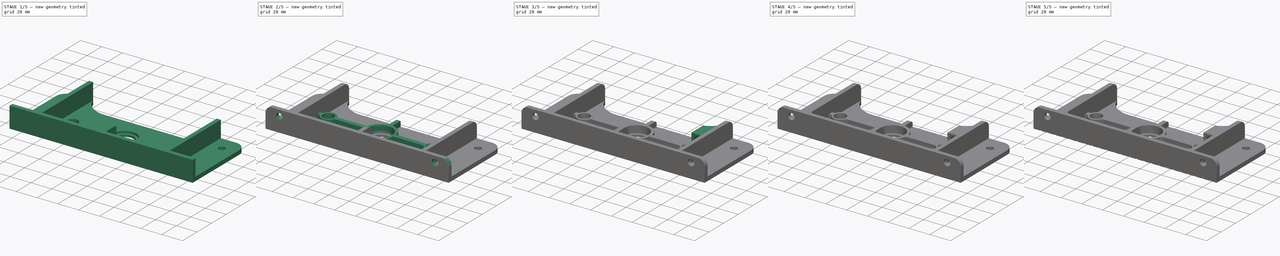
[diagram: build sequence overview — one tinted view per stage of 5, left to right]
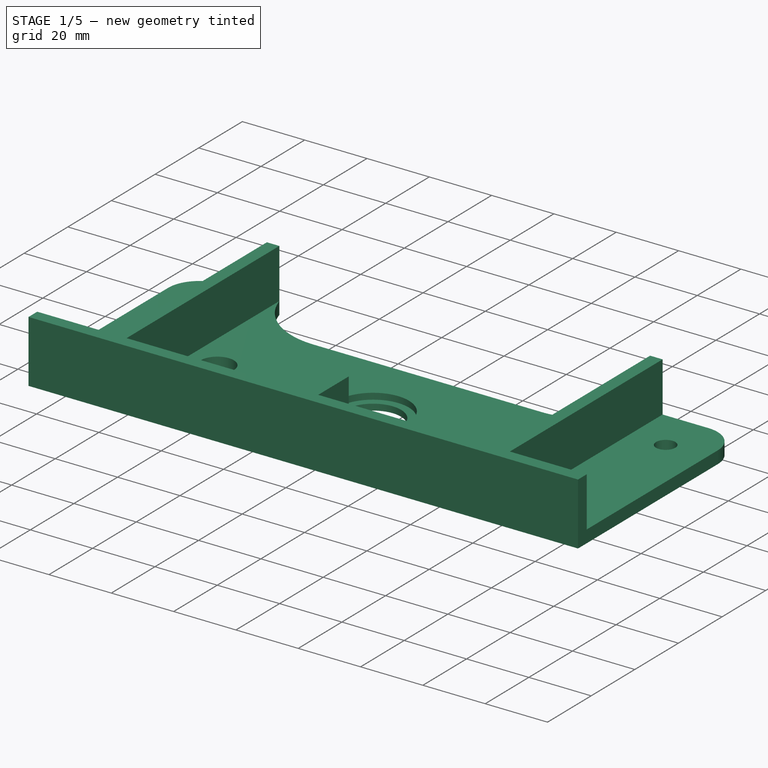
[diagram: stage 1 of 5 — iso view after this stage's code; geometry added in this stage tinted green]
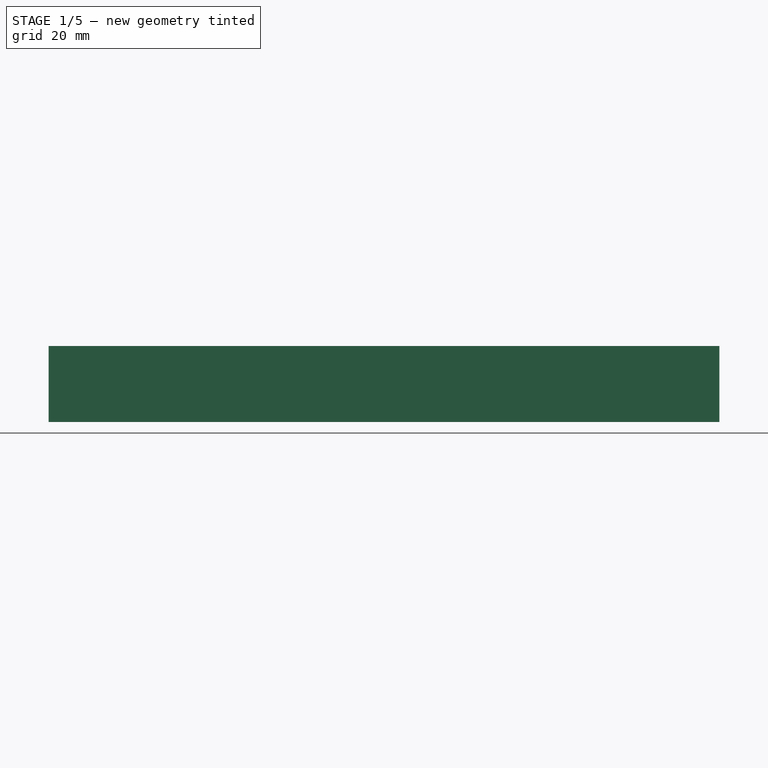
[diagram: stage 1 of 5 — front view after this stage's code; geometry added in this stage tinted green]
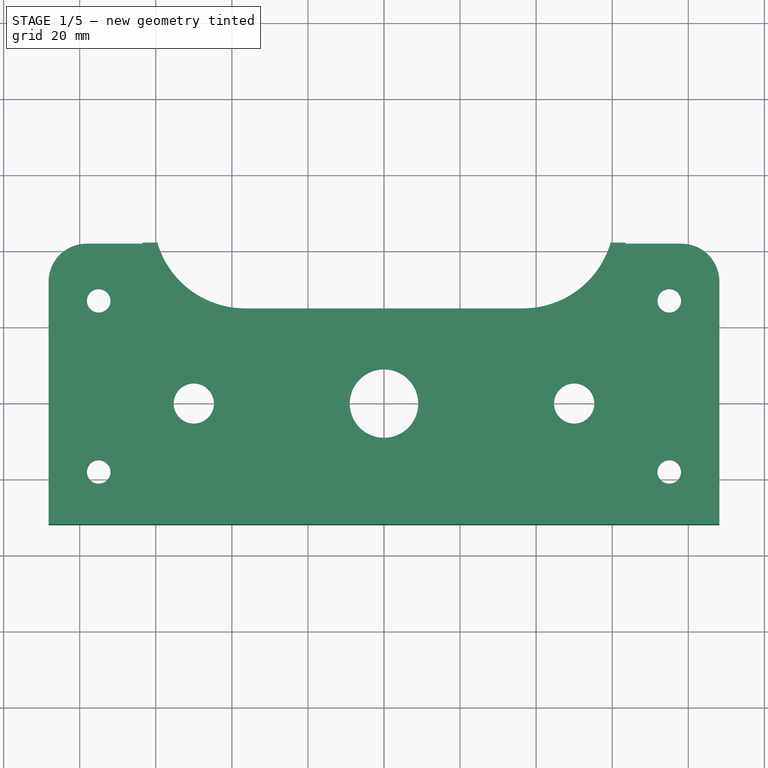
[diagram: stage 1 of 5 — top view after this stage's code; geometry added in this stage tinted green]
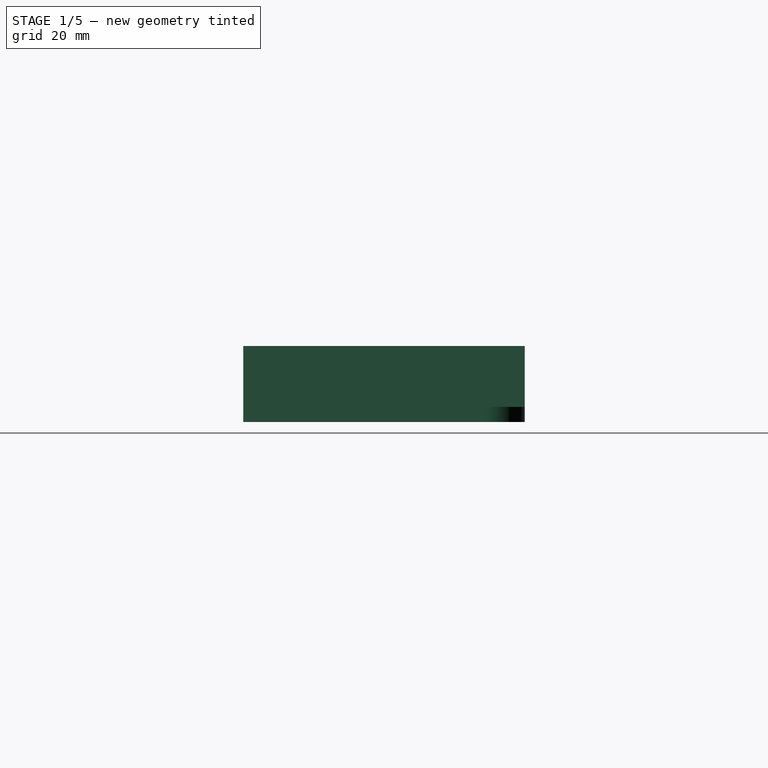
[diagram: stage 1 of 5 — right view after this stage's code; geometry added in this stage tinted green]
FCSTD DOCUMENT  (FreeCAD 0.17R8073 (Git))
Label: z_upper_v2.6
License: All rights reserved
LicenseURL: http://en.wikipedia.org/wiki/All_rights_reserved
objects: Sketcher::SketchObject×9, PartDesign::Pocket×5, PartDesign::Pad×4, PartDesign::Fillet×4, PartDesign::LinearPattern×2, PartDesign::Body×1
note: 34 computed .brp shape members not serialized (recipe doc carries the construction recipe); baked Part::Feature solids carry a one-line shape summary decoded from their .brp

FEATURE [Sketcher::SketchObject] Sketch
  MapMode = 5
  Support = -> [XY_Plane]
  sketch-geometry (17):
    g0: LineSegment StartX=-88.175 StartY=-32 StartZ=0 EndX=88.175 EndY=-32 EndZ=0
    g1: LineSegment StartX=88.175 StartY=-32 StartZ=0 EndX=88.175 EndY=32 EndZ=0
    g2: LineSegment StartX=-36.5435 StartY=25 StartZ=0 EndX=36.5435 EndY=25 EndZ=0
    g3: LineSegment StartX=-88.175 StartY=-32 StartZ=0 EndX=-88.175 EndY=32 EndZ=0
    g4: LineSegment StartX=-78.175 StartY=42 StartZ=0 EndX=-59.5 EndY=42 EndZ=0
    g5: LineSegment StartX=59.5 StartY=42 StartZ=0 EndX=78.175 EndY=42 EndZ=0
    g6: ArcOfCircle CenterX=-78.175 CenterY=32 CenterZ=0 NormalX=0 NormalY=0 NormalZ=1 Radius=10 StartAngle=1.57079 EndAngle=3.1416
    g7: ArcOfCircle CenterX=78.175 CenterY=32 CenterZ=0 NormalX=0 NormalY=0 NormalZ=1 Radius=10 StartAngle=6.28318 EndAngle=7.85398
    g8: ArcOfCircle CenterX=-36.5435 CenterY=49 CenterZ=0 NormalX=0 NormalY=0 NormalZ=1 Radius=24 StartAngle=3.43756 EndAngle=4.71239
    g9: ArcOfCircle CenterX=36.5435 CenterY=49 CenterZ=0 NormalX=0 NormalY=0 NormalZ=1 Radius=24 StartAngle=4.71239 EndAngle=5.98722
    g10: Circle CenterX=0 CenterY=0 CenterZ=0 NormalX=0 NormalY=0 NormalZ=1 Radius=9
    g11: Circle CenterX=50 CenterY=0 CenterZ=0 NormalX=0 NormalY=0 NormalZ=1 Radius=5.3
    g12: Circle CenterX=-50 CenterY=0 CenterZ=0 NormalX=0 NormalY=0 NormalZ=1 Radius=5.3
    g13: Circle CenterX=-75 CenterY=-18 CenterZ=0 NormalX=0 NormalY=0 NormalZ=1 Radius=3.1
    g14: Circle CenterX=-75 CenterY=27 CenterZ=0 NormalX=0 NormalY=0 NormalZ=1 Radius=3.1
    g15: Circle CenterX=75 CenterY=27 CenterZ=0 NormalX=0 NormalY=0 NormalZ=1 Radius=3.1
    g16: Circle CenterX=75 CenterY=-18 CenterZ=0 NormalX=0 NormalY=0 NormalZ=1 Radius=3.1
  constraints (50):
    c: Coincident(g1,g0)
    c: Vertical(g1)
    c: Coincident(g3,g0)
    c: Vertical(g3)
    c: Horizontal(g4)
    c: Horizontal(g5)
    c: Coincident(g6,g3)
    c: Coincident(g6,g4)
    c: Coincident(g7,g1)
    c: Coincident(g7,g5)
    c: Coincident(g8,g2)
    c: Coincident(g8,g4)
    c: Coincident(g9,g2)
    c: Coincident(g9,g5)
    c: PointOnObject(g10,g-2)
    c: Coincident(g10,g-1)
    c: Symmetric(g0,g0,g-2)
    c: Symmetric(g11,g12,g-2)
    c: Equal(g12,g11)
    c: Equal(g15,g16)
    c: Equal(g16,g13)
    c: Equal(g13,g14)
    c: Symmetric(g14,g15,g-2)
    c: Symmetric(g16,g13,g-2)
    c: DistanceX(g15,g16) = 0
    c: DistanceX(g-1,g0) = 88.175
    c: Equal(g3,g1)
    c: Equal(g5,g4)
    c: Symmetric(g2,g2,g-2)
    c: DistanceY(g0,g-1) = 32
    c: Radius(g10) = 9
    c: Radius(g11) = 5.3
    c: Radius(g15) = 3.1
    c: DistanceY(g0,g4) = 74
    c: Tangent(g8,g2)
    c: Tangent(g9,g2)
    c: Tangent(g6,g3)
    c: Tangent(g4,g6)
    c: Tangent(g7,g5)
    c: Tangent(g7,g1)
    c: DistanceY(g12,g-1) = 0
    c: DistanceX(g12,g-1) = 50
    c: DistanceX(g-1,g16) = 75
    c: DistanceY(g0,g13) = 14
    c: DistanceY(g14,g4) = 15
    c: Equal(g6,g7)
    c: Radius(g8) = 24
    c: DistanceX(g4,g-1) = 59.5
    c: DistanceY(g-1,g2) = 25
    c: Radius(g7) = 10
FEATURE [PartDesign::Pad] Pad
  Length = 4
  Length2 = 100
  Profile = -> Sketch
  Type = 0
FEATURE [Sketcher::SketchObject] Sketch001
  ExternalGeometry = -> [Pad]
  MapMode = 5
  Placement = pos=(0,0,4) rot=(0,0,1;0rad)
  Support = -> [Pad]
  sketch-geometry (16):
    g0: LineSegment StartX=-88.175 StartY=-32 StartZ=0 EndX=-88.175 EndY=-28 EndZ=0
    g1: LineSegment StartX=-88.175 StartY=-28 StartZ=0 EndX=-63.5 EndY=-28 EndZ=0
    g2: LineSegment StartX=-63.5 StartY=-28 StartZ=0 EndX=-63.5 EndY=42 EndZ=0
    g3: LineSegment StartX=-63.5 StartY=42 StartZ=0 EndX=-59.5 EndY=42 EndZ=0
    g4: LineSegment StartX=-59.5 StartY=42 StartZ=0 EndX=-59.5 EndY=-28 EndZ=0
    g5: LineSegment StartX=59.5 StartY=-28 StartZ=0 EndX=59.5 EndY=42 EndZ=0
    g6: LineSegment StartX=59.5 StartY=42 StartZ=0 EndX=63.5 EndY=42 EndZ=0
    g7: LineSegment StartX=63.5 StartY=42 StartZ=0 EndX=63.5 EndY=-28 EndZ=0
    g8: LineSegment StartX=63.5 StartY=-28 StartZ=0 EndX=88.175 EndY=-28 EndZ=0
    g9: LineSegment StartX=88.175 StartY=-28 StartZ=0 EndX=88.175 EndY=-32 EndZ=0
    g10: LineSegment StartX=88.175 StartY=-32 StartZ=0 EndX=-88.175 EndY=-32 EndZ=0
    g11: LineSegment StartX=-59.5 StartY=-28 StartZ=0 EndX=-2 EndY=-28 EndZ=0
    g12: LineSegment StartX=-2 StartY=-28 StartZ=0 EndX=-2 EndY=-14 EndZ=0
    g13: LineSegment StartX=-2 StartY=-14 StartZ=0 EndX=2 EndY=-14 EndZ=0
    g14: LineSegment StartX=2 StartY=-14 StartZ=0 EndX=2 EndY=-28 EndZ=0
    g15: LineSegment StartX=2 StartY=-28 StartZ=0 EndX=59.5 EndY=-28 EndZ=0
  constraints (44):
    c: Coincident(g0,g-3)
    c: Vertical(g0)
    c: Coincident(g0,g1)
    c: Horizontal(g1)
    c: Coincident(g1,g2)
    c: Vertical(g2)
    c: Coincident(g2,g3)
    c: Coincident(g3,g-6)
    c: Horizontal(g3)
    c: Coincident(g3,g4)
    c: Vertical(g4)
    c: Coincident(g5,g-5)
    c: Vertical(g5)
    c: Coincident(g5,g6)
    c: Horizontal(g6)
    c: Coincident(g6,g7)
    c: Vertical(g7)
    c: Coincident(g7,g8)
    c: Horizontal(g8)
    c: Coincident(g8,g9)
    c: Coincident(g9,g-4)
    c: Vertical(g9)
    c: Coincident(g9,g10)
    c: Coincident(g10,g0)
    c: Coincident(g4,g11)
    c: Horizontal(g11)
    c: Coincident(g11,g12)
    c: Vertical(g12)
    c: Coincident(g12,g13)
    c: Horizontal(g13)
    c: Coincident(g13,g14)
    c: Vertical(g14)
    c: Coincident(g14,g15)
    c: Coincident(g15,g5)
    c: Horizontal(g15)
    c: Symmetric(g14,g11,g-2)
    c: Equal(g12,g14)
    c: Equal(g3,g6)
    c: DistanceY(g1,g4) = 0
    c: DistanceY(g7,g5) = 0
    c: DistanceX(g13,g13) = 4
    c: DistanceY(g9,g9) = 4
    c: DistanceY(g14,g14) = 14
    c: DistanceX(g-1,g6) = 63.5
FEATURE [PartDesign::Pad] Pad001
  BaseFeature = -> Pad
  Length = 16
  Length2 = 100
  Profile = -> Sketch001
  Type = 0
FEATURE [Sketcher::SketchObject] Sketch002
  MapMode = 5
  Placement = pos=(0,0,4) rot=(0,0,1;0rad)
  Support = -> [Pad001]
  sketch-geometry (1):
    g0: Circle CenterX=0 CenterY=0 CenterZ=0 NormalX=0 NormalY=0 NormalZ=1 Radius=11.5
  constraints (2):
    c: Coincident(g0,g-1)
    c: Radius(g0) = 11.5
FEATURE [PartDesign::Pocket] Pocket
  BaseFeature = -> Pad001
  Length = 2
  Profile = -> Sketch002
  Type = 0
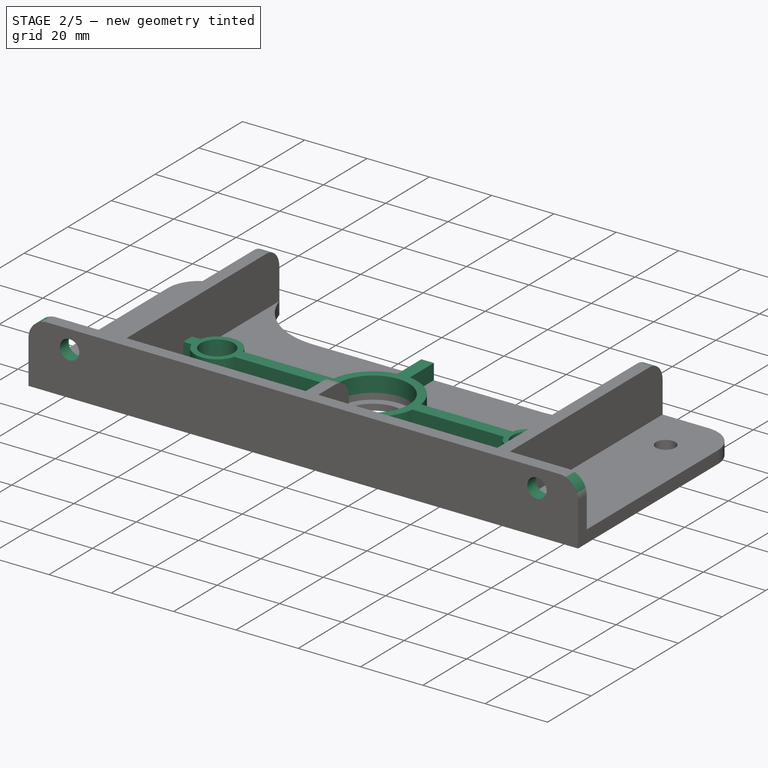
[diagram: stage 2 of 5 — iso view after this stage's code; geometry added in this stage tinted green]
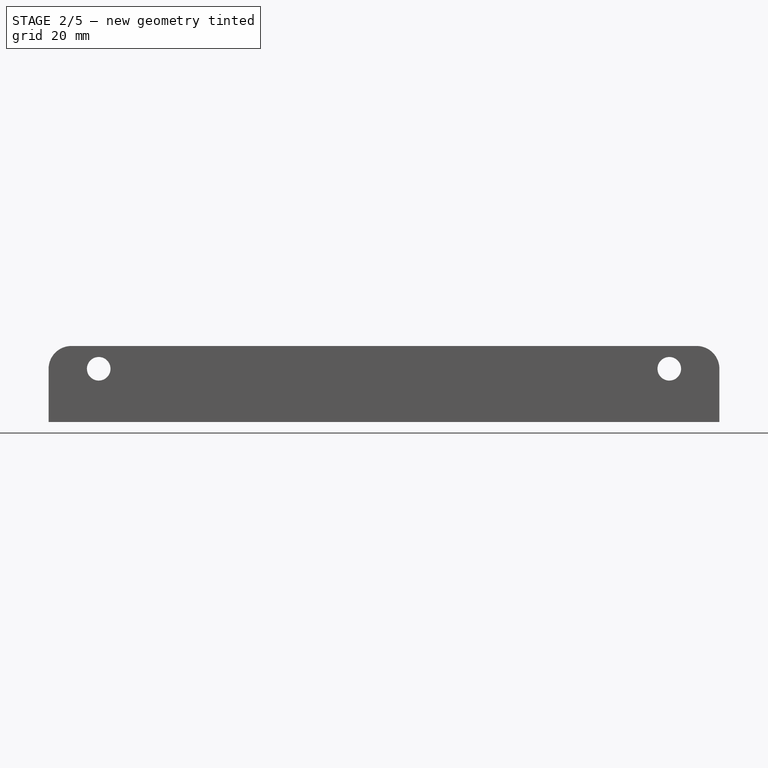
[diagram: stage 2 of 5 — front view after this stage's code; geometry added in this stage tinted green]
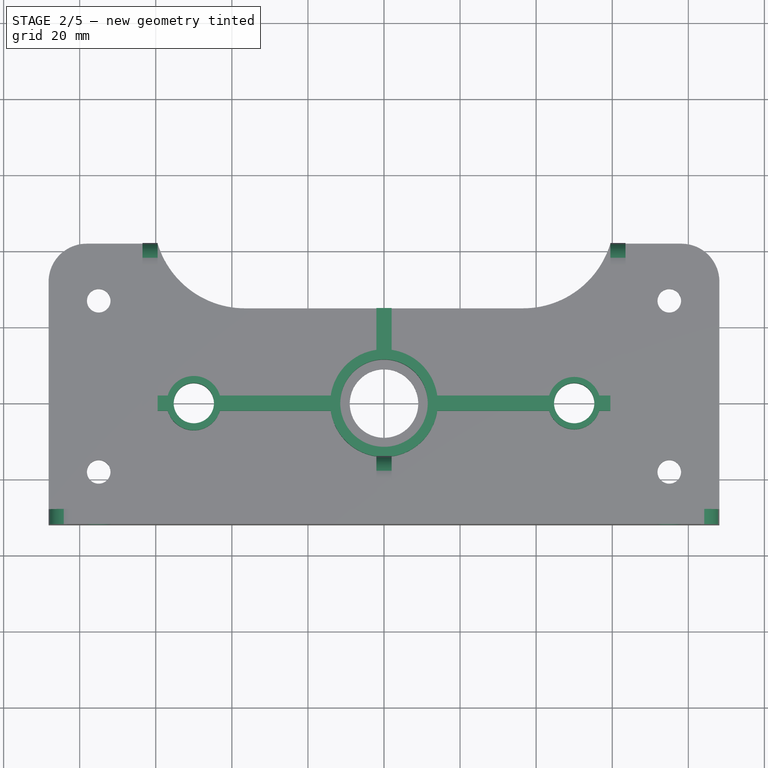
[diagram: stage 2 of 5 — top view after this stage's code; geometry added in this stage tinted green]
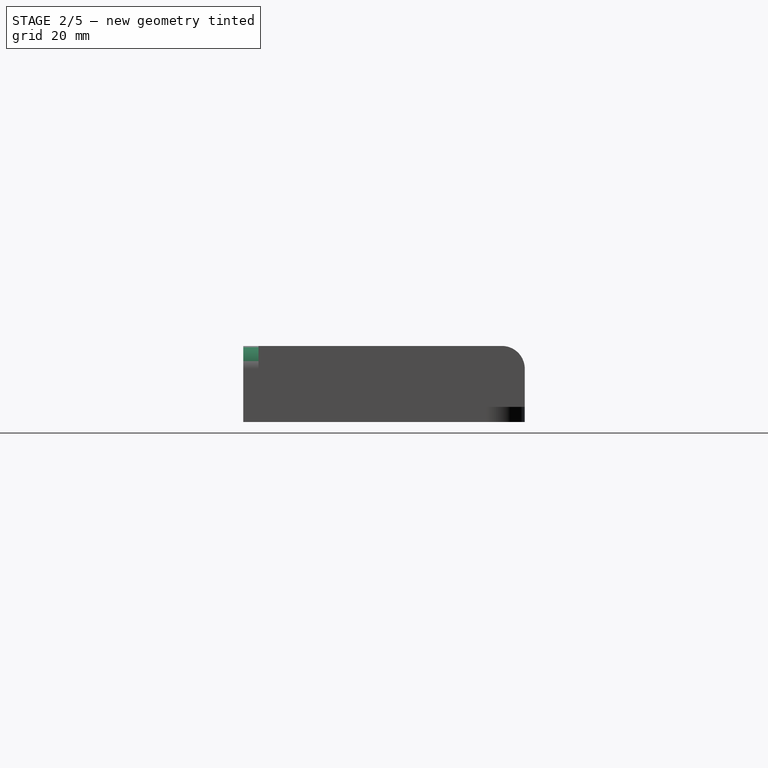
[diagram: stage 2 of 5 — right view after this stage's code; geometry added in this stage tinted green]
FEATURE [PartDesign::Fillet] Fillet
  Base = -> Pocket [Edge85,Edge82,Edge34,Edge39,Edge78]
  BaseFeature = -> Pocket
  Radius = 6
FEATURE [Sketcher::SketchObject] Sketch003
  ExternalGeometry = -> [Fillet]
  MapMode = 5
  Placement = pos=(0,-32,0) rot=(1,0,0;1.5708rad)
  Support = -> [Fillet]
  sketch-geometry (2):
    g0: Circle CenterX=-75 CenterY=14 CenterZ=0 NormalX=0 NormalY=0 NormalZ=1 Radius=3.1
    g1: Circle CenterX=75 CenterY=14 CenterZ=0 NormalX=0 NormalY=0 NormalZ=1 Radius=3.1
  constraints (5):
    c: Equal(g1,g0)
    c: Symmetric(g0,g1,g-2)
    c: DistanceX(g-1,g1) = 75
    c: Radius(g1) = 3.1
    c: DistanceY(g1,g-3) = 6
FEATURE [PartDesign::Pocket] Pocket001
  BaseFeature = -> Fillet
  Length = 5
  Profile = -> Sketch003
  Type = 0
FEATURE [Sketcher::SketchObject] Sketch004
  ExternalGeometry = -> [Pocket001]
  MapMode = 5
  Placement = pos=(0,0,4) rot=(0,0,1;0rad)
  Support = -> [Pocket001]
  sketch-geometry (25):
    g0: LineSegment StartX=-59.5 StartY=2 StartZ=0 EndX=-56.8461 EndY=2 EndZ=0
    g1: LineSegment StartX=-59.5 StartY=-2 StartZ=0 EndX=-56.8461 EndY=-2 EndZ=0
    g2: LineSegment StartX=-43.1539 StartY=2 StartZ=0 EndX=-14 EndY=2 EndZ=0
    g3: LineSegment StartX=-43.1539 StartY=-2 StartZ=0 EndX=-14 EndY=-2 EndZ=0
    g4: LineSegment StartX=59.5 StartY=2 StartZ=0 EndX=56.5822 EndY=2 EndZ=0
    g5: LineSegment StartX=59.5 StartY=-2 StartZ=0 EndX=56.5822 EndY=-2 EndZ=0
    g6: LineSegment StartX=43.4178 StartY=-2 StartZ=0 EndX=14 EndY=-2 EndZ=0
    g7: LineSegment StartX=43.4178 StartY=2 StartZ=0 EndX=14 EndY=2 EndZ=0
    g8: LineSegment StartX=-2 StartY=14 StartZ=0 EndX=-2 EndY=25 EndZ=0
    g9: LineSegment StartX=2 StartY=14 StartZ=0 EndX=2 EndY=25 EndZ=0
    g10: ArcOfCircle CenterX=0 CenterY=0 CenterZ=0 NormalX=0 NormalY=0 NormalZ=1 Radius=14.1421 StartAngle=1.71269 EndAngle=2.9997
    g11: ArcOfCircle CenterX=0 CenterY=0 CenterZ=0 NormalX=0 NormalY=0 NormalZ=1 Radius=14.1421 StartAngle=3.28349 EndAngle=4.57049
    g12: LineSegment StartX=-2 StartY=-14 StartZ=0 EndX=2 EndY=-14 EndZ=0
    g13: ArcOfCircle CenterX=0 CenterY=0 CenterZ=0 NormalX=0 NormalY=0 NormalZ=1 Radius=14.1421 StartAngle=4.85429 EndAngle=6.14129
    g14: ArcOfCircle CenterX=0 CenterY=0 CenterZ=0 NormalX=0 NormalY=0 NormalZ=1 Radius=14.1421 StartAngle=0.141897 EndAngle=1.4289
    g15: ArcOfCircle CenterX=-50 CenterY=0 CenterZ=0 NormalX=0 NormalY=0 NormalZ=1 Radius=7.13222 StartAngle=0.284229 EndAngle=2.85736
    g16: ArcOfCircle CenterX=-50 CenterY=0 CenterZ=0 NormalX=0 NormalY=0 NormalZ=1 Radius=7.13222 StartAngle=3.42582 EndAngle=5.99896
    g17: ArcOfCircle CenterX=50 CenterY=0 CenterZ=0 NormalX=0 NormalY=0 NormalZ=1 Radius=6.87932 StartAngle=0.294986 EndAngle=2.84661
    g18: ArcOfCircle CenterX=50 CenterY=0 CenterZ=0 NormalX=0 NormalY=0 NormalZ=1 Radius=6.87932 StartAngle=3.43658 EndAngle=5.9882
    g19: Circle CenterX=0 CenterY=0 CenterZ=0 NormalX=0 NormalY=0 NormalZ=1 Radius=11.5
    g20: Circle CenterX=50 CenterY=0 CenterZ=0 NormalX=0 NormalY=0 NormalZ=1 Radius=5.3
    g21: Circle CenterX=-50 CenterY=0 CenterZ=0 NormalX=0 NormalY=0 NormalZ=1 Radius=5.3
    g22: LineSegment StartX=59.5 StartY=-2 StartZ=0 EndX=59.5 EndY=2 EndZ=0
    g23: LineSegment StartX=-2 StartY=25 StartZ=0 EndX=2 EndY=25 EndZ=0
    g24: LineSegment StartX=-59.5 StartY=-2 StartZ=0 EndX=-59.5 EndY=2 EndZ=0
  constraints (65):
    c: PointOnObject(g0,g-5)
    c: Horizontal(g0)
    c: PointOnObject(g1,g-5)
    c: Horizontal(g1)
    c: Horizontal(g2)
    c: Horizontal(g3)
    c: PointOnObject(g4,g-4)
    c: Horizontal(g4)
    c: PointOnObject(g5,g-4)
    c: Horizontal(g6)
    c: Horizontal(g7)
    c: Horizontal(g5)
    c: Vertical(g8)
    c: Vertical(g9)
    c: Coincident(g10,g-1)
    c: Coincident(g10,g2)
    c: Coincident(g10,g8)
    c: Coincident(g11,g-1)
    c: Coincident(g11,g3)
    c: Coincident(g11,g-3)
    c: Coincident(g12,g11)
    c: Coincident(g12,g-3)
    c: Coincident(g13,g-1)
    c: Coincident(g13,g12)
    c: Coincident(g13,g6)
    c: Coincident(g14,g-1)
    c: Coincident(g14,g9)
    c: Coincident(g14,g7)
    c: PointOnObject(g15,g-1)
    c: Coincident(g15,g0)
    c: Coincident(g15,g2)
    c: Coincident(g16,g15)
    c: Coincident(g16,g1)
    c: Coincident(g16,g3)
    c: Coincident(g17,g7)
    c: Coincident(g17,g4)
    c: Coincident(g18,g17)
    c: Coincident(g18,g6)
    c: Coincident(g18,g5)
    c: Symmetric(g8,g9,g-2)
    c: Symmetric(g3,g2,g-1)
    c: Symmetric(g7,g6,g-1)
    c: Symmetric(g7,g6,g-1)
    c: Symmetric(g4,g5,g-1)
    c: Symmetric(g2,g3,g-1)
    c: Symmetric(g0,g1,g-1)
    c: DistanceY(g1,g0) = 4
    c: DistanceY(g3,g2) = 4
    c: DistanceX(g8,g9) = 4
    c: DistanceY(g6,g7) = 4
    c: DistanceY(g5,g4) = 4
    c: Coincident(g19,g-1)
    c: Radius(g19) = 11.5
    c: Coincident(g20,g17)
    c: Radius(g20) = 5.3
    c: Coincident(g21,g15)
    c: Equal(g21,g20)
    c: PointOnObject(g8,g-7)
    c: PointOnObject(g9,g-7)
    c: Coincident(g22,g5)
    c: Coincident(g22,g4)
    c: Coincident(g23,g8)
    c: Coincident(g23,g9)
    c: Coincident(g24,g1)
    c: Coincident(g24,g0)
FEATURE [PartDesign::Pad] Pad002
  BaseFeature = -> Pocket001
  Length = 5
  Length2 = 100
  Profile = -> Sketch004
  Type = 0
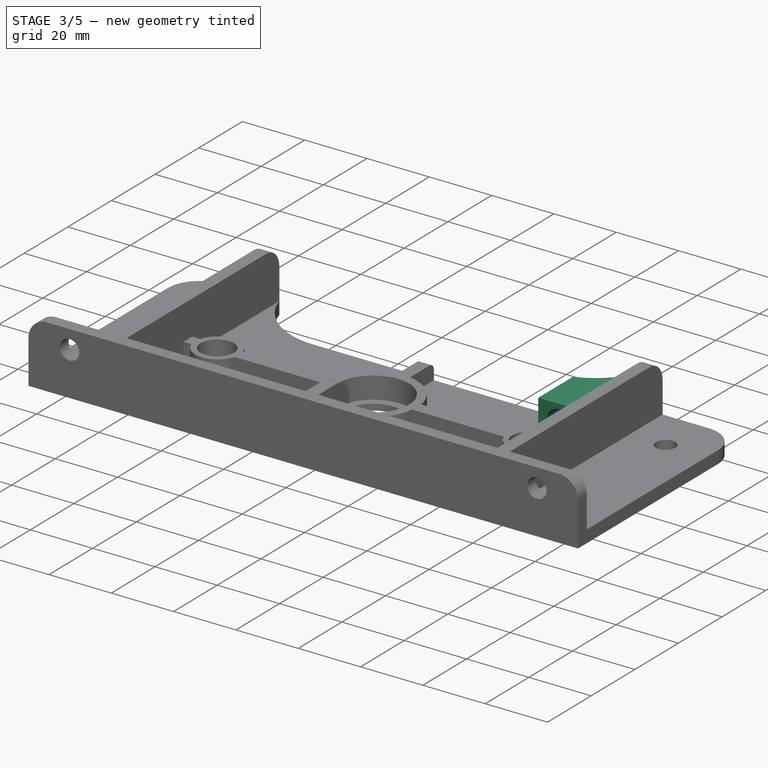
[diagram: stage 3 of 5 — iso view after this stage's code; geometry added in this stage tinted green]
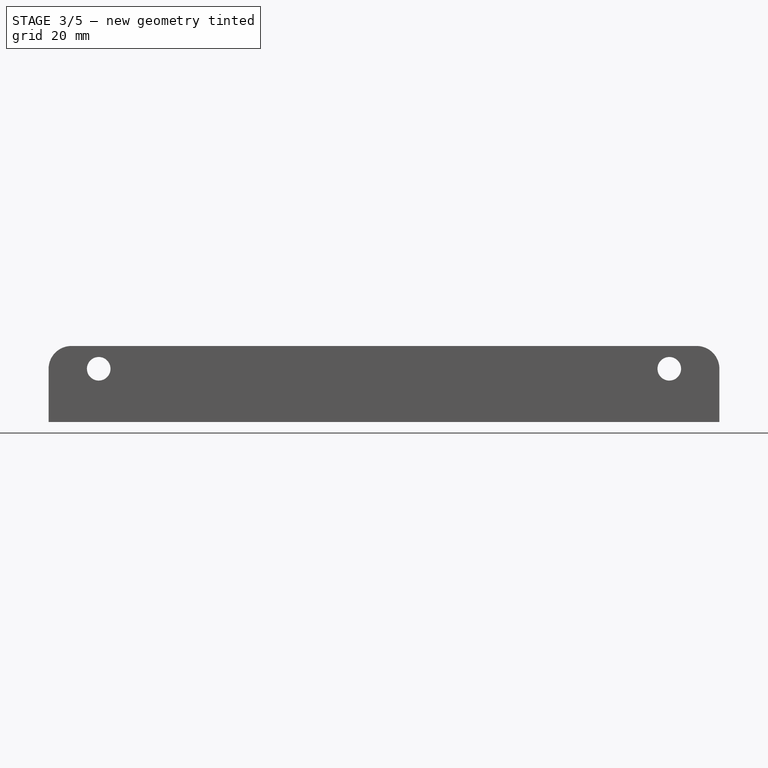
[diagram: stage 3 of 5 — front view after this stage's code; geometry added in this stage tinted green]
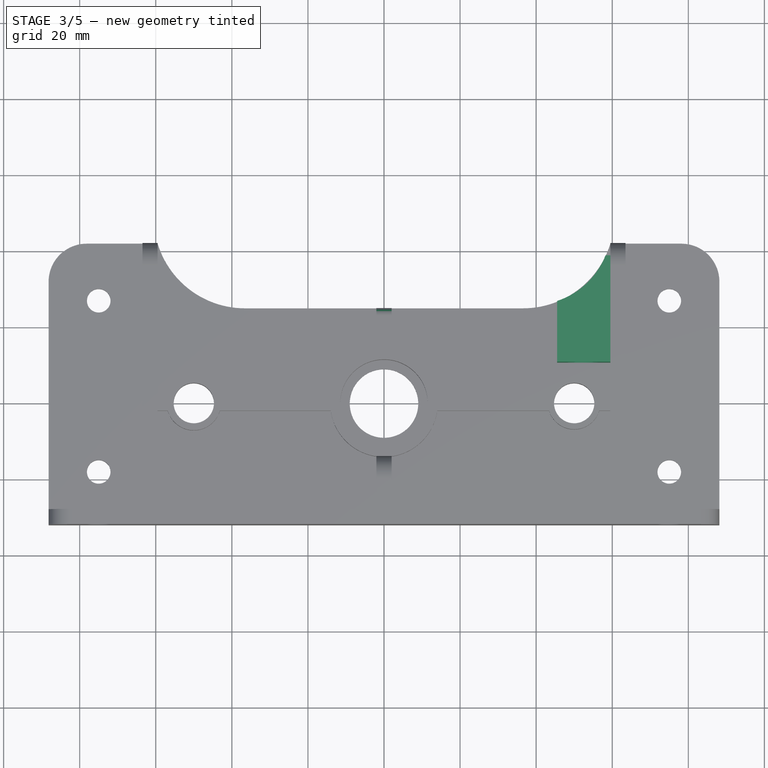
[diagram: stage 3 of 5 — top view after this stage's code; geometry added in this stage tinted green]
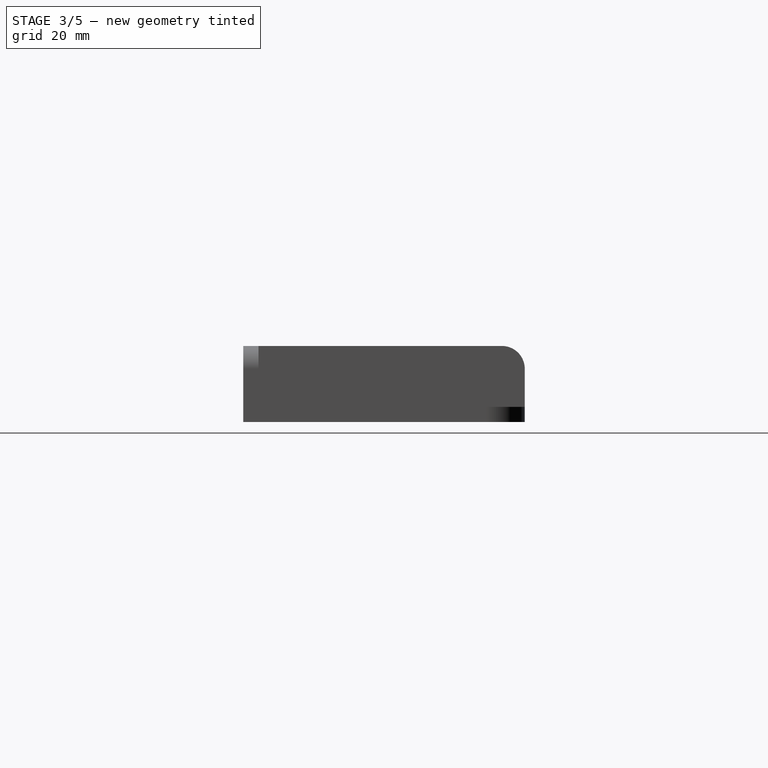
[diagram: stage 3 of 5 — right view after this stage's code; geometry added in this stage tinted green]
FEATURE [PartDesign::Fillet] Fillet001
  Base = -> Pad002 [Edge80]
  BaseFeature = -> Pad002
  Radius = 2
FEATURE [Sketcher::SketchObject] Sketch005
  ExternalGeometry = -> [Fillet001]
  MapMode = 5
  Placement = pos=(0,0,4) rot=(0,0,1;0rad)
  Support = -> [Fillet001]
  sketch-geometry (5):
    g0: LineSegment StartX=59.5 StartY=38.7338 StartZ=0 EndX=59.5 EndY=10.7338 EndZ=0
    g1: LineSegment StartX=59.5 StartY=10.7338 StartZ=0 EndX=45.5 EndY=10.7338 EndZ=0
    g2: LineSegment StartX=45.5 StartY=10.7338 StartZ=0 EndX=45.5 EndY=26.7338 EndZ=0
    g3: ArcOfCircle CenterX=39.1002 CenterY=46.2863 CenterZ=0 NormalX=0 NormalY=0 NormalZ=1 Radius=20.5732 StartAngle=5.02871 EndAngle=5.90729
    g4: LineSegment StartX=58.237 StartY=38.7338 StartZ=0 EndX=59.5 EndY=38.7338 EndZ=0
  constraints (16):
    c: PointOnObject(g0,g-3)
    c: PointOnObject(g0,g-3)
    c: Coincident(g0,g1)
    c: Horizontal(g1)
    c: Coincident(g2,g1)
    c: Vertical(g2)
    c: Coincident(g3,g2)
    c: Coincident(g4,g3)
    c: PointOnObject(g4,g-3)
    c: Horizontal(g4)
    c: PointOnObject(g2,g-4)
    c: PointOnObject(g3,g-4)
    c: DistanceX(g1,g1) = 14
    c: DistanceY(g0,g4) = 28
    c: DistanceY(g2,g2) = 16
    c: Coincident(g4,g0)
FEATURE [PartDesign::Pad] Pad003
  BaseFeature = -> Fillet001
  Length = 12
  Length2 = 100
  Profile = -> Sketch005
  Type = 0
FEATURE [Sketcher::SketchObject] Sketch006
  ExternalGeometry = -> [Pad003]
  MapMode = 5
  Placement = pos=(0,10.7338,0) rot=(1,0,0;1.5708rad)
  Support = -> [Pad003]
  sketch-geometry (1):
    g0: Circle CenterX=52.5 CenterY=10 CenterZ=0 NormalX=0 NormalY=0 NormalZ=1 Radius=4.5
  constraints (3):
    c: Radius(g0) = 4.5
    c: DistanceX(g-3,g0) = 7
    c: DistanceY(g0,g-3) = 6
FEATURE [PartDesign::Pocket] Pocket002
  BaseFeature = -> Pad003
  Length = 5
  Profile = -> Sketch006
  Type = 1
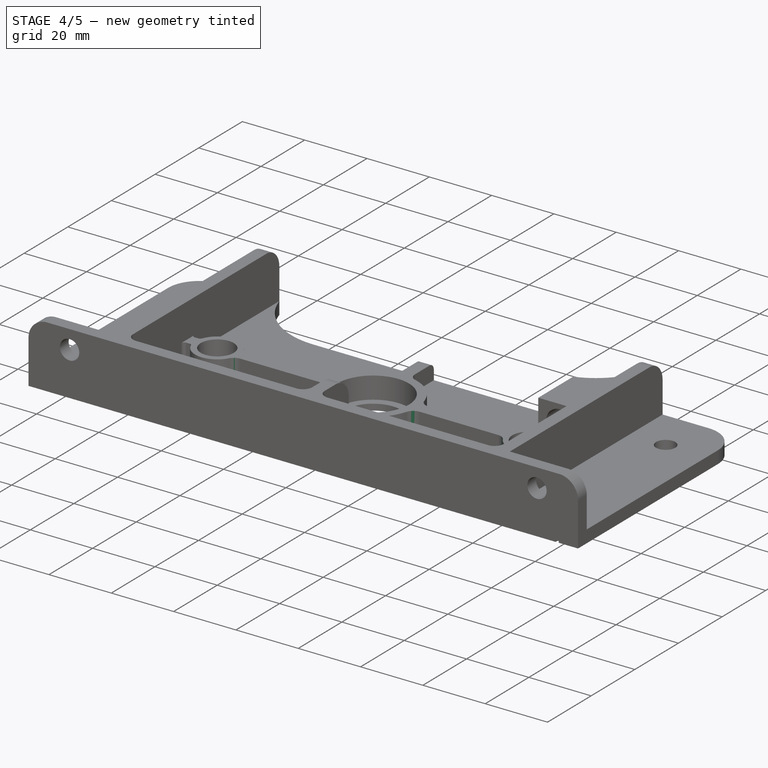
[diagram: stage 4 of 5 — iso view after this stage's code; geometry added in this stage tinted green]
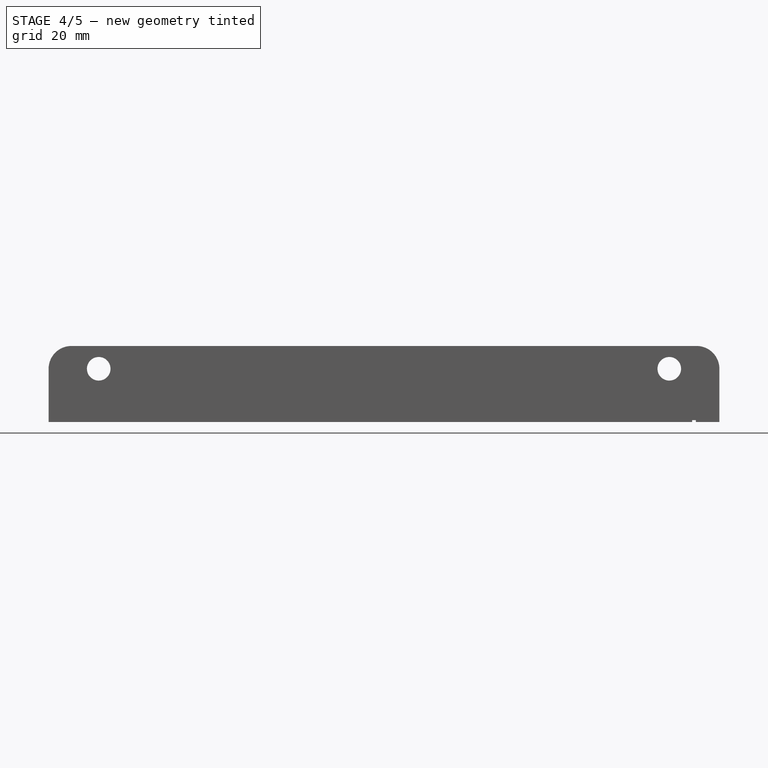
[diagram: stage 4 of 5 — front view after this stage's code; geometry added in this stage tinted green]
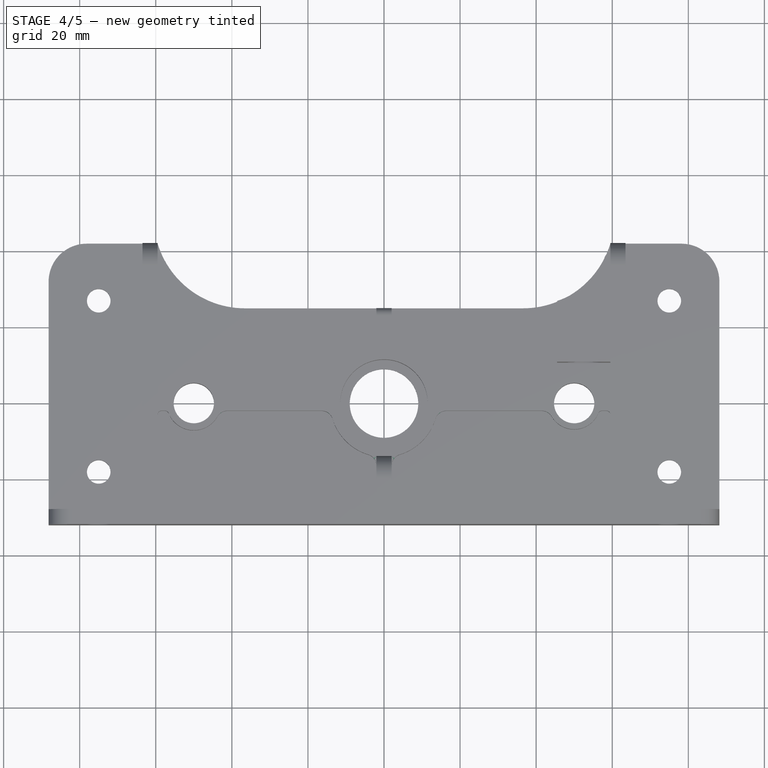
[diagram: stage 4 of 5 — top view after this stage's code; geometry added in this stage tinted green]
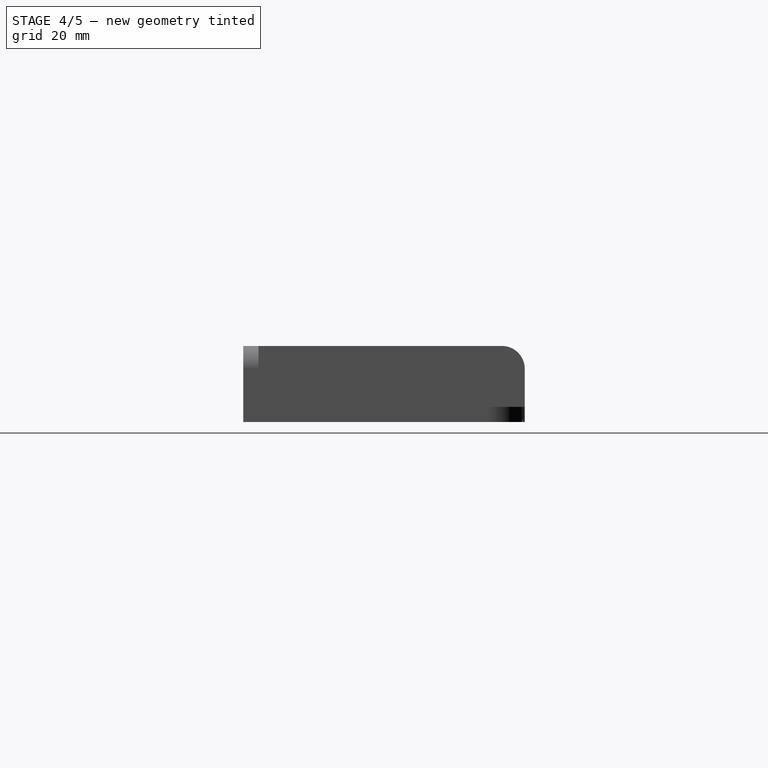
[diagram: stage 4 of 5 — right view after this stage's code; geometry added in this stage tinted green]
FEATURE [PartDesign::Fillet] Fillet002
  Base = -> Pocket002 [Edge27,Edge33,Edge37,Edge72,Edge76,Edge80,Edge86,Edge82,Edge39,Edge34,Edge53,Edge107,Edge122,Edge61,Edge77,Edge43]
  BaseFeature = -> Pocket002
  Radius = 3
FEATURE [PartDesign::Fillet] Fillet003
  Base = -> Fillet002 [Edge69,Edge66,Edge75,Edge83,Edge102,Edge93,Edge81,Edge84]
  BaseFeature = -> Fillet002
  Radius = 1
FEATURE [Sketcher::SketchObject] Sketch007
  ExternalGeometry = -> [Fillet003]
  MapMode = 5
  Placement = pos=(0,0,0) rot=(1,0,0;3.14159rad)
  Support = -> [Fillet003]
  sketch-geometry (4):
    g0: LineSegment StartX=81.005 StartY=33 StartZ=0 EndX=82.005 EndY=33 EndZ=0
    g1: LineSegment StartX=82.005 StartY=33 StartZ=0 EndX=82.005 EndY=-43 EndZ=0
    g2: LineSegment StartX=82.005 StartY=-43 StartZ=0 EndX=81.005 EndY=-43 EndZ=0
    g3: LineSegment StartX=81.005 StartY=-43 StartZ=0 EndX=81.005 EndY=33 EndZ=0
  constraints (12):
    c: Coincident(g0,g1)
    c: Coincident(g1,g2)
    c: Coincident(g2,g3)
    c: Coincident(g3,g0)
    c: Horizontal(g0)
    c: Horizontal(g2)
    c: Vertical(g1)
    c: Vertical(g3)
    c: DistanceX(g2,g2) = 1
    c: Distance(g0,g-3) = 1
    c: DistanceY(g2,g-5) = 1
    c: DistanceX(g0,g-3) = 6.17
FEATURE [PartDesign::Pocket] Pocket003
  BaseFeature = -> Fillet003
  Length = 1
  Midplane = true
  Profile = -> Sketch007
  Type = 0
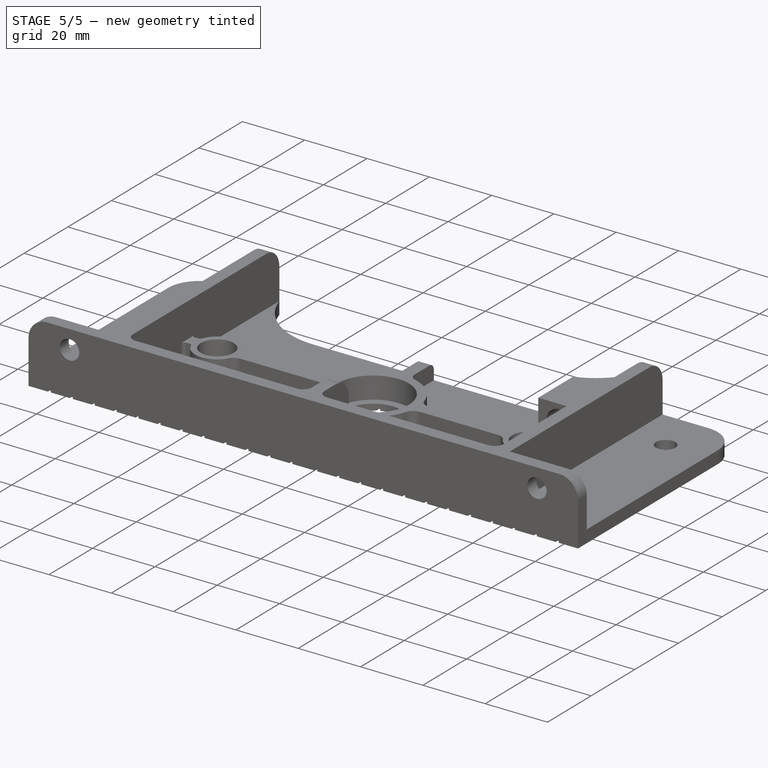
[diagram: stage 5 of 5 — iso view after this stage's code; geometry added in this stage tinted green]
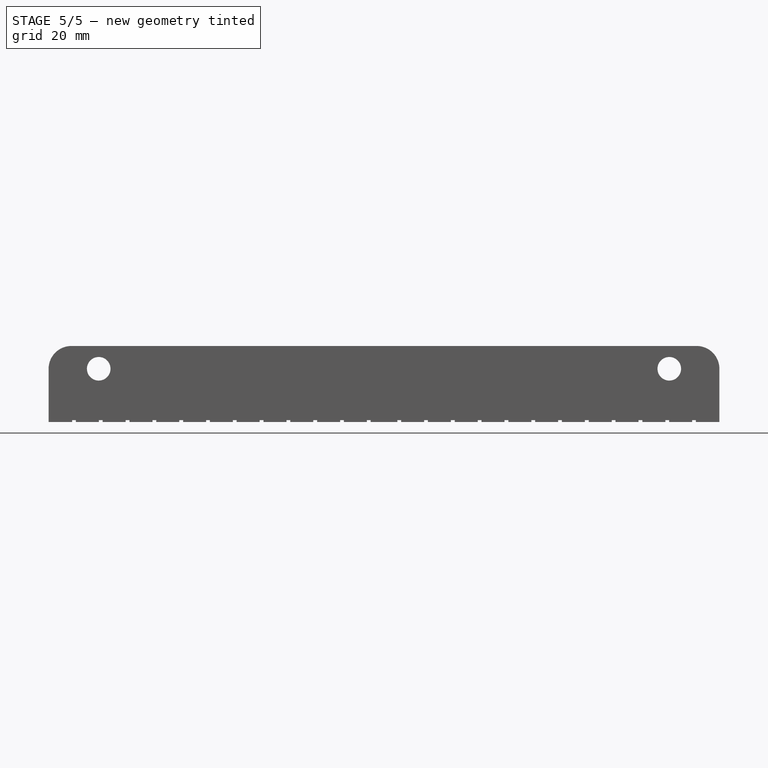
[diagram: stage 5 of 5 — front view after this stage's code; geometry added in this stage tinted green]
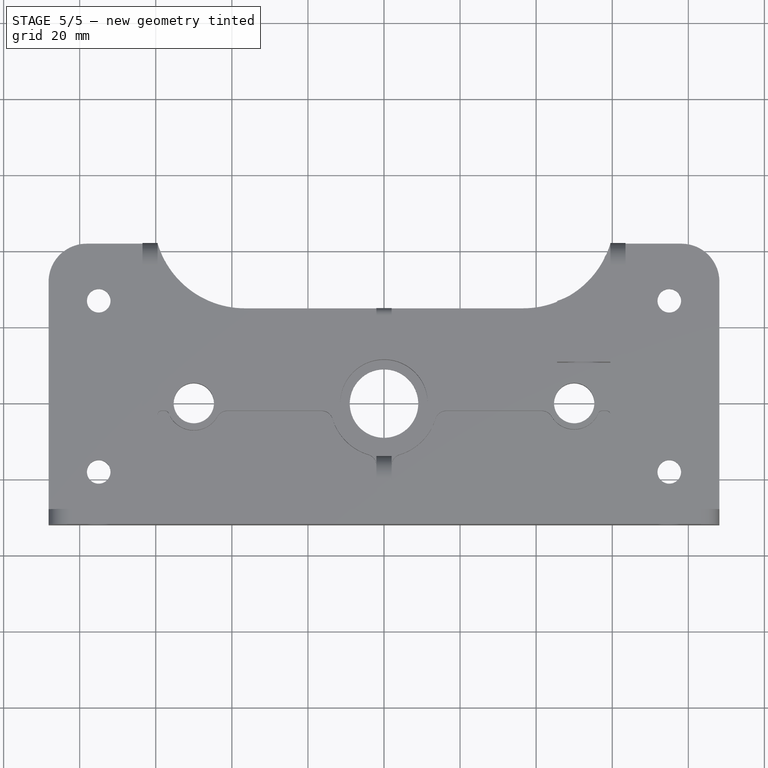
[diagram: stage 5 of 5 — top view after this stage's code; geometry added in this stage tinted green]
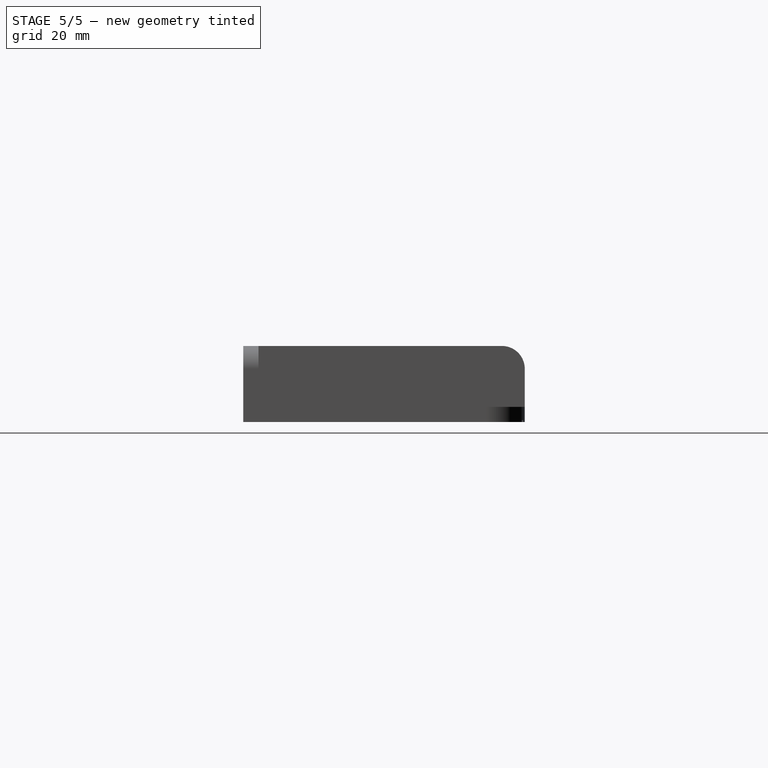
[diagram: stage 5 of 5 — right view after this stage's code; geometry added in this stage tinted green]
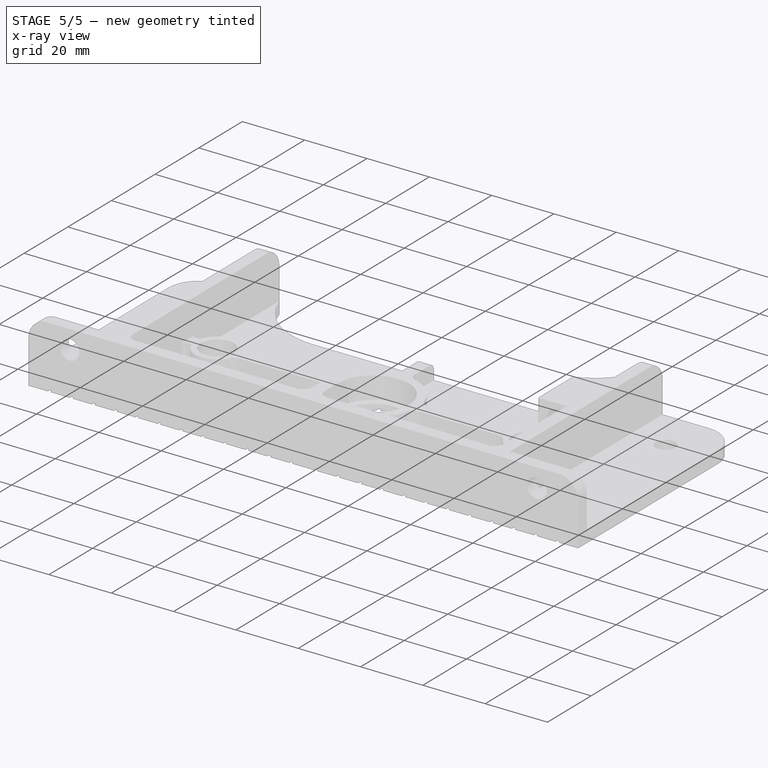
[diagram: stage 5 of 5 — x-ray composite at the iso view; earlier geometry ghosted, this stage's added geometry solid]
FEATURE [Sketcher::SketchObject] Sketch008
  ExternalGeometry = -> [Pocket003]
  MapMode = 5
  Placement = pos=(0,0,0) rot=(1,0,0;3.14159rad)
  Support = -> [Pocket003]
  sketch-geometry (4):
    g0: LineSegment StartX=-82.005 StartY=33 StartZ=0 EndX=-81.005 EndY=33 EndZ=0
    g1: LineSegment StartX=-81.005 StartY=33 StartZ=0 EndX=-81.005 EndY=-43 EndZ=0
    g2: LineSegment StartX=-81.005 StartY=-43 StartZ=0 EndX=-82.005 EndY=-43 EndZ=0
    g3: LineSegment StartX=-82.005 StartY=-43 StartZ=0 EndX=-82.005 EndY=33 EndZ=0
  constraints (12):
    c: Coincident(g0,g1)
    c: Coincident(g1,g2)
    c: Coincident(g2,g3)
    c: Coincident(g3,g0)
    c: Horizontal(g0)
    c: Horizontal(g2)
    c: Vertical(g1)
    c: Vertical(g3)
    c: DistanceX(g2,g2) = 1
    c: DistanceY(g1,g-4) = 1
    c: DistanceY(g-3,g0) = 1
    c: DistanceX(g-3,g0) = 6.17
FEATURE [PartDesign::Pocket] Pocket004
  BaseFeature = -> Pocket003
  Length = 1
  Midplane = true
  Profile = -> Sketch008
  Type = 0
FEATURE [PartDesign::LinearPattern] LinearPattern
  BaseFeature = -> Pocket004
  Direction = -> Sketch007 [H_Axis]
  Length = 77.5
  Occurrences = 12
  Originals = -> [Pocket003]
  Reversed = true
FEATURE [PartDesign::LinearPattern] LinearPattern001
  BaseFeature = -> LinearPattern
  Direction = -> Sketch008 [H_Axis]
  Length = 77.5
  Occurrences = 12
  Originals = -> [Pocket004]
FEATURE [PartDesign::Body] Body
  Model = -> [Sketch,Pad,Sketch001,Pad001,Sketch002,Pocket,Fillet,Sketch003,Pocket001,Sketch004,Pad002,Fillet001,Sketch005,Pad003,Sketch006,Pocket002,Fillet002,Fillet003,Sketch007,Pocket003,Sketch008,Pocket004,LinearPattern,LinearPattern001]
  Origin = -> BodyOrigin
  Tip = -> LinearPattern001
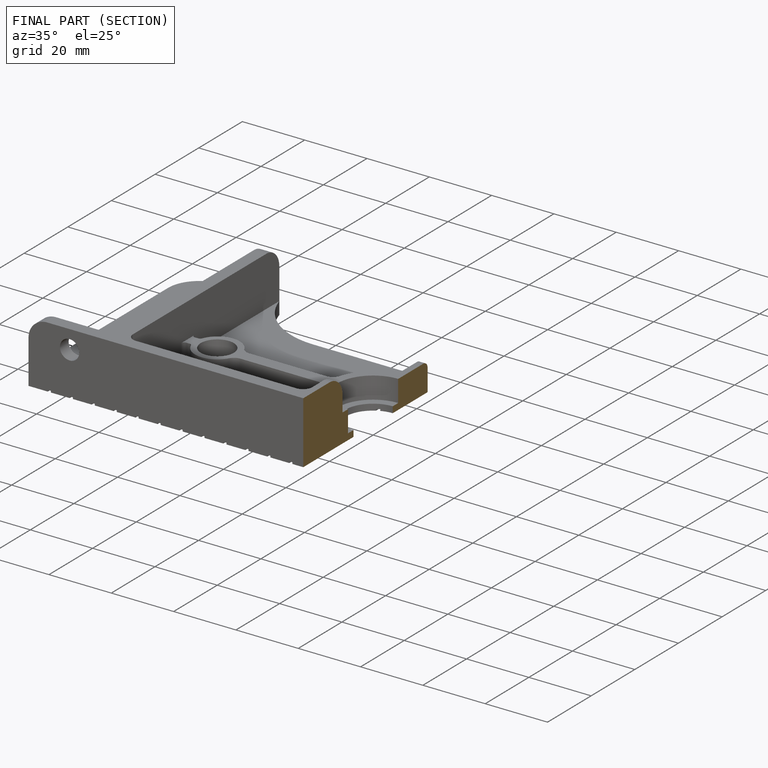
[diagram: finished part — half-section view (interior)]
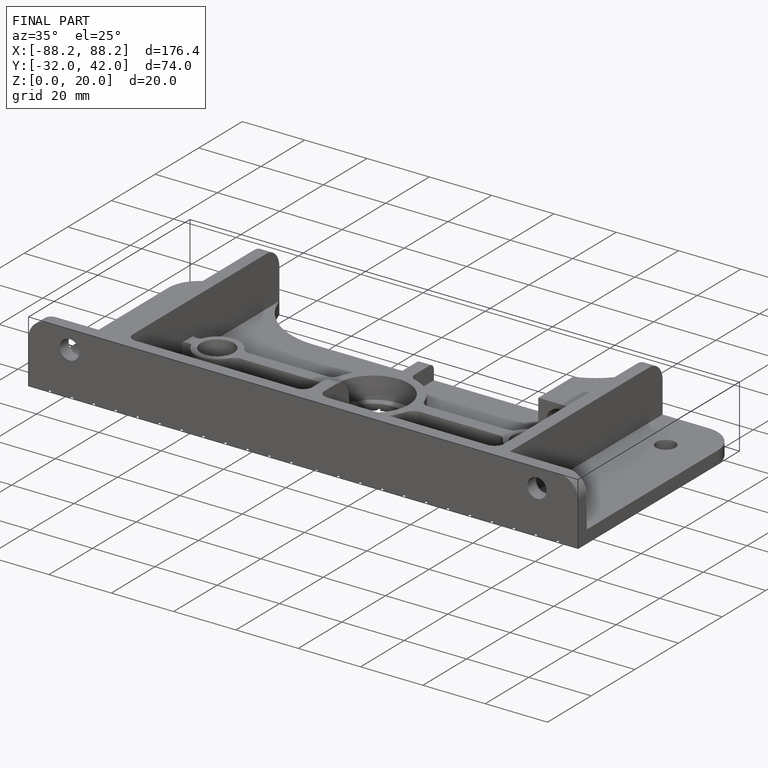
[diagram: finished part — iso view with bounding-box wireframe]
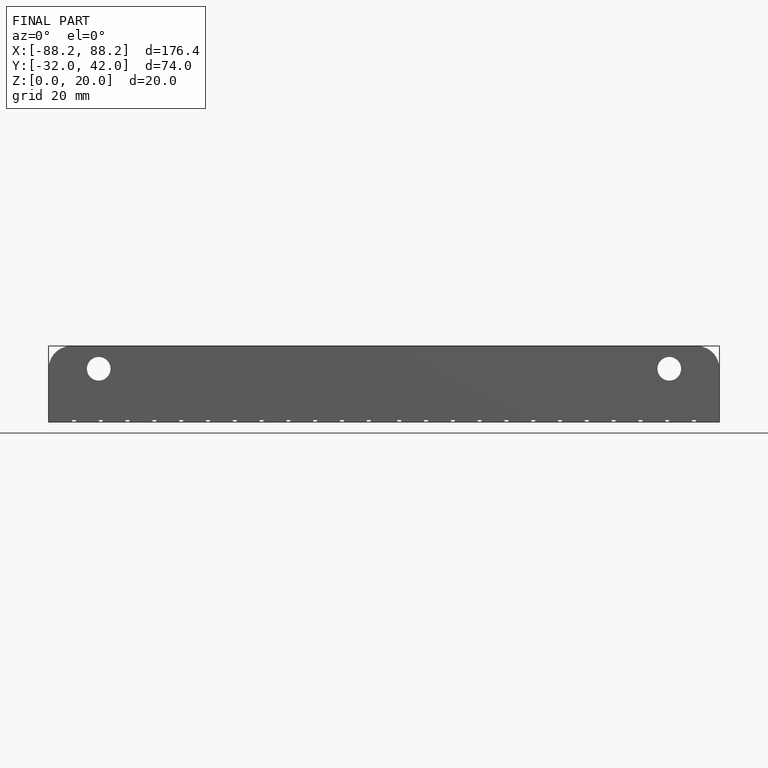
[diagram: finished part — front view with bounding-box wireframe]
